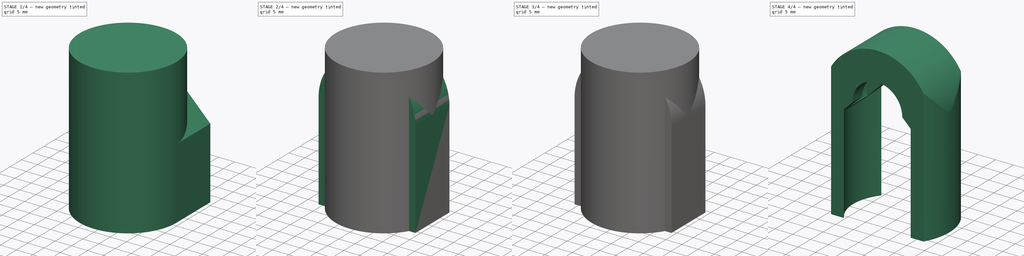
[diagram: build sequence overview — one tinted view per stage of 4, left to right]
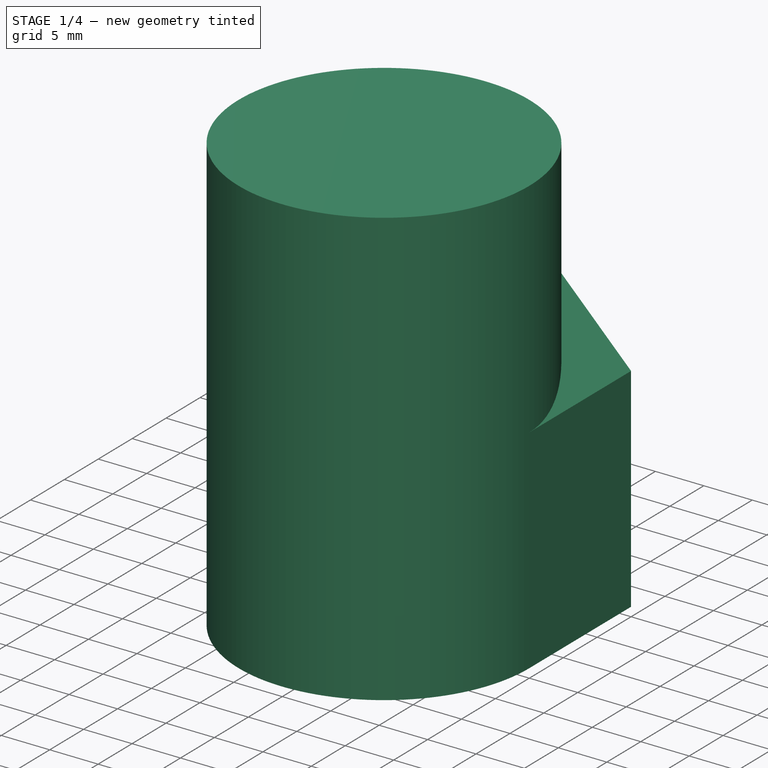
[diagram: stage 1 of 4 — iso view after this stage's code; geometry added in this stage tinted green]
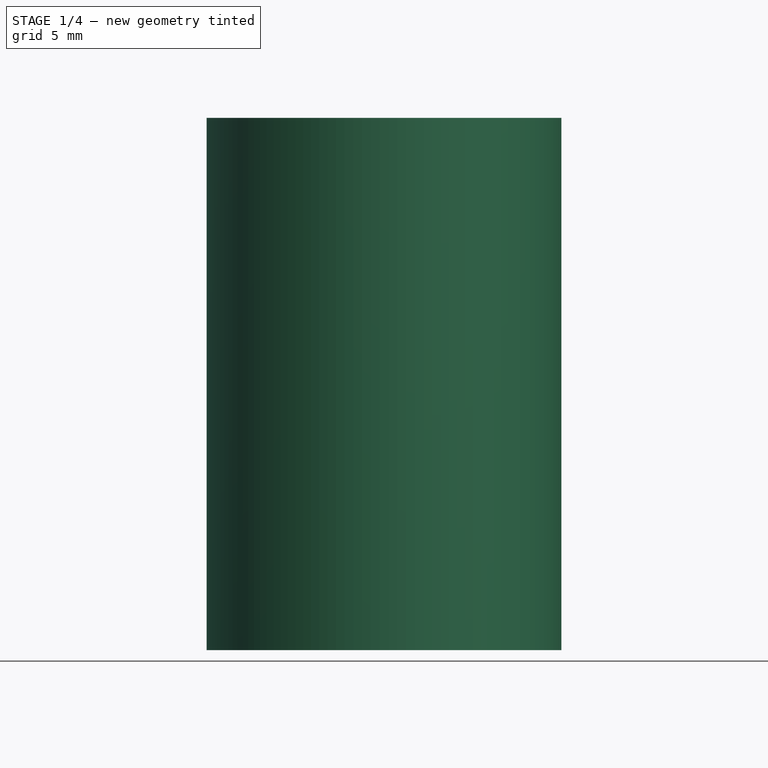
[diagram: stage 1 of 4 — front view after this stage's code; geometry added in this stage tinted green]
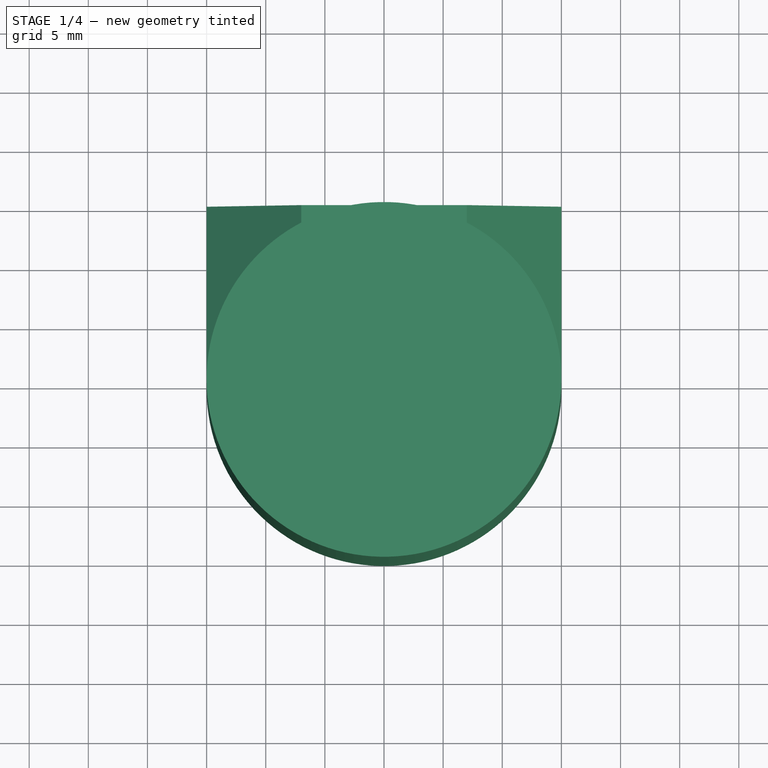
[diagram: stage 1 of 4 — top view after this stage's code; geometry added in this stage tinted green]
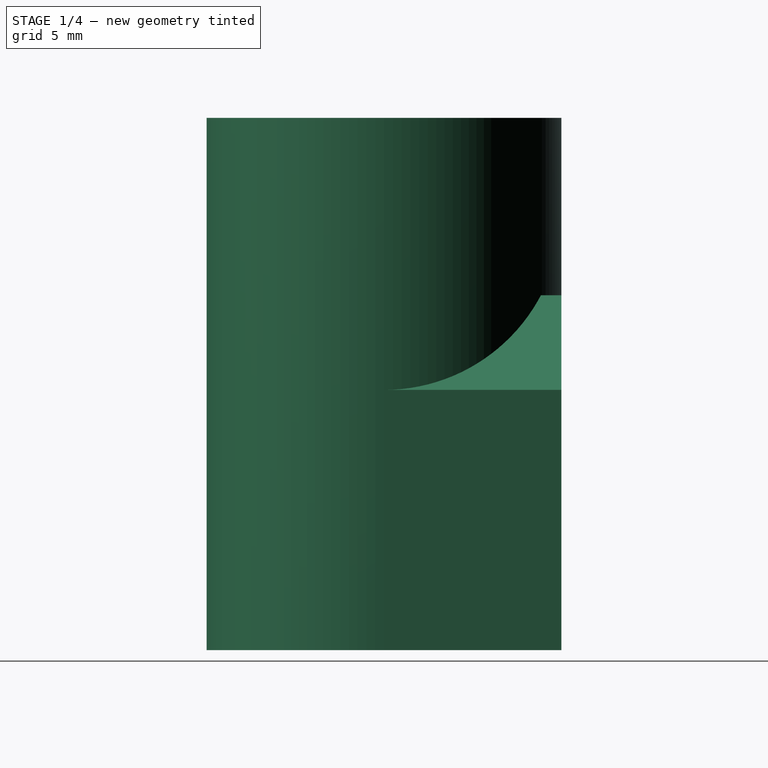
[diagram: stage 1 of 4 — right view after this stage's code; geometry added in this stage tinted green]
FCSTD DOCUMENT  (FreeCAD 0.17R13522 (Git))
Label: connector-bearing-top
License: All rights reserved
LicenseURL: http://en.wikipedia.org/wiki/All_rights_reserved
objects: Part::Cylinder×5, Part::MultiFuse×2, Part::MultiCommon×2, Part::Box×1, Sketcher::SketchObject×1, PartDesign::Pad×1, PartDesign::Body×1, Part::Cut×1
note: 15 computed .brp shape members not serialized (recipe doc carries the construction recipe); baked Part::Feature solids carry a one-line shape summary decoded from their .brp

FEATURE [Sketcher::SketchObject] Sketch
  MapMode = 5
  Placement = pos=(0,0,0) rot=(1,0,0;1.5708rad)
  Support = -> [XZ_Plane]
  sketch-geometry (6):
    g0: LineSegment StartX=-7 StartY=0 StartZ=0 EndX=7 EndY=0 EndZ=0
    g1: LineSegment StartX=7 StartY=0 StartZ=0 EndX=15 EndY=-8 EndZ=0
    g2: LineSegment StartX=-15 StartY=-8 StartZ=0 EndX=-7 EndY=0 EndZ=0
    g3: LineSegment StartX=15 StartY=-8 StartZ=0 EndX=15 EndY=-30 EndZ=0
    g4: LineSegment StartX=15 StartY=-30 StartZ=0 EndX=-15 EndY=-30 EndZ=0
    g5: LineSegment StartX=-15 StartY=-30 StartZ=0 EndX=-15 EndY=-8 EndZ=0
  constraints (18):
    c: Coincident(g0,g1)
    c: Coincident(g2,g0)
    c: Horizontal(g0)
    c: DistanceX(g-1,g0) = 7
    c: DistanceX(g0,g0) = 14
    c: DistanceY(g0,g-1) = 0
    c: Coincident(g3,g4)
    c: Coincident(g4,g5)
    c: Horizontal(g4)
    c: Vertical(g3)
    c: Vertical(g5)
    c: Coincident(g5,g2)
    c: Coincident(g3,g1)
    c: DistanceY(g3,g0) = 30
    c: Angle(g1,g3) = 2.35619
    c: Angle(g5,g2) = 2.35619
    c: DistanceX(g4,g4) = 30
    c: DistanceY(g2,g1) = 0
FEATURE [PartDesign::Pad] Pad
  Length = 15
  Length2 = 100
  Placement = pos=(0,0,0) rot=(1,0,0;1.5708rad)
  Profile = -> Sketch
  Reversed = true
  Type = 0
FEATURE [PartDesign::Body] Body
  Group = -> [Sketch,Pad]
  Origin = -> Origin
  Placement = pos=(0,-7.5,0) rot=(0,0,1;0rad)
  Tip = -> Pad
FEATURE [Part::Cylinder] Cylinder003  label="Cylinder002"
  Angle = 360
  AttacherType = Attacher::AttachEngine3D
  Height = 30
  Placement = pos=(0,0,-30) rot=(0,0,1;0rad)
  Radius = 12
FEATURE [Part::Cylinder] Cylinder004  label="Cylinder003"
  Angle = 360
  AttacherType = Attacher::AttachEngine3D
  Height = 45
  Placement = pos=(0,0,-30) rot=(0,0,1;0rad)
  Radius = 15
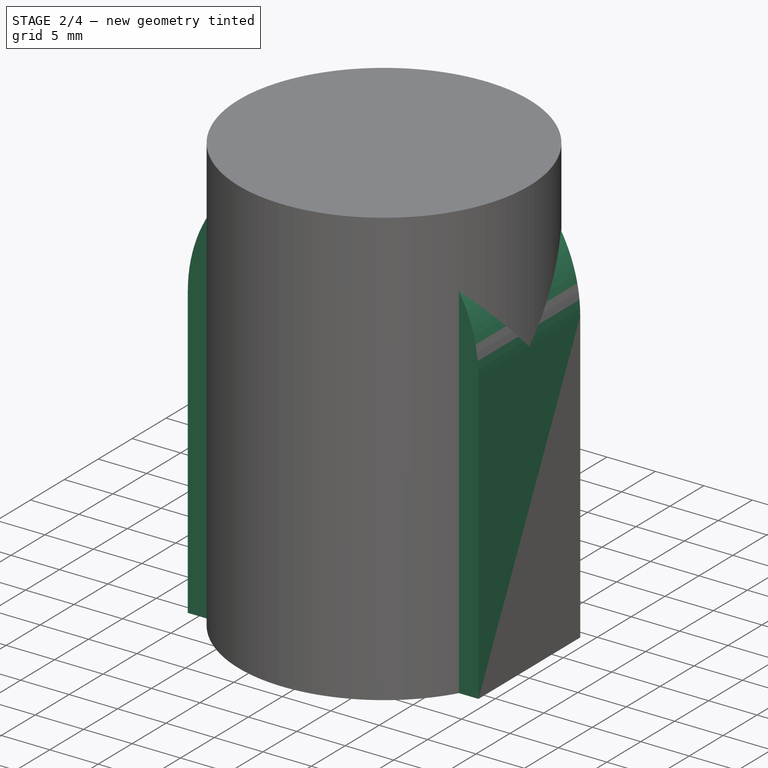
[diagram: stage 2 of 4 — iso view after this stage's code; geometry added in this stage tinted green]
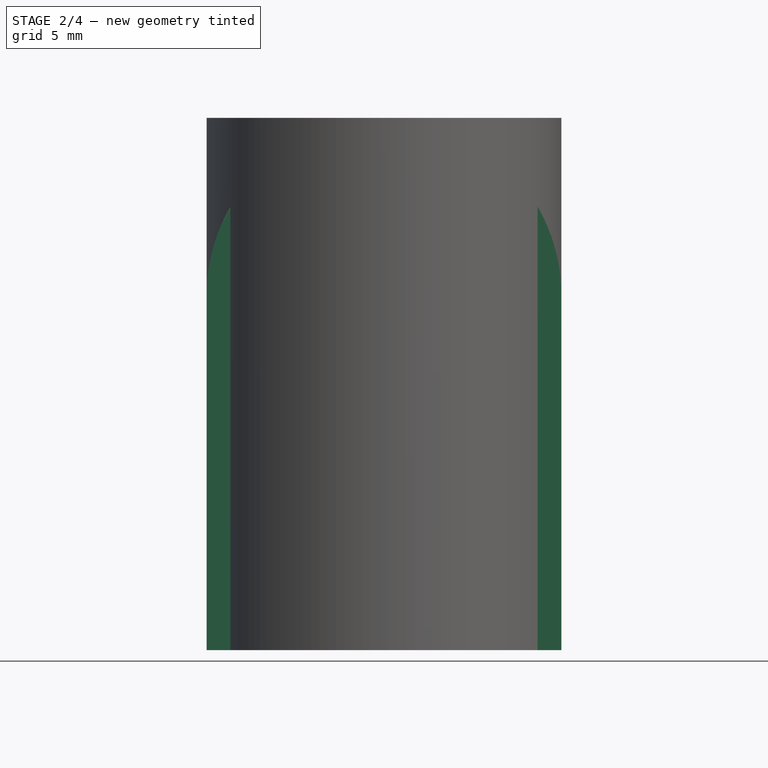
[diagram: stage 2 of 4 — front view after this stage's code; geometry added in this stage tinted green]
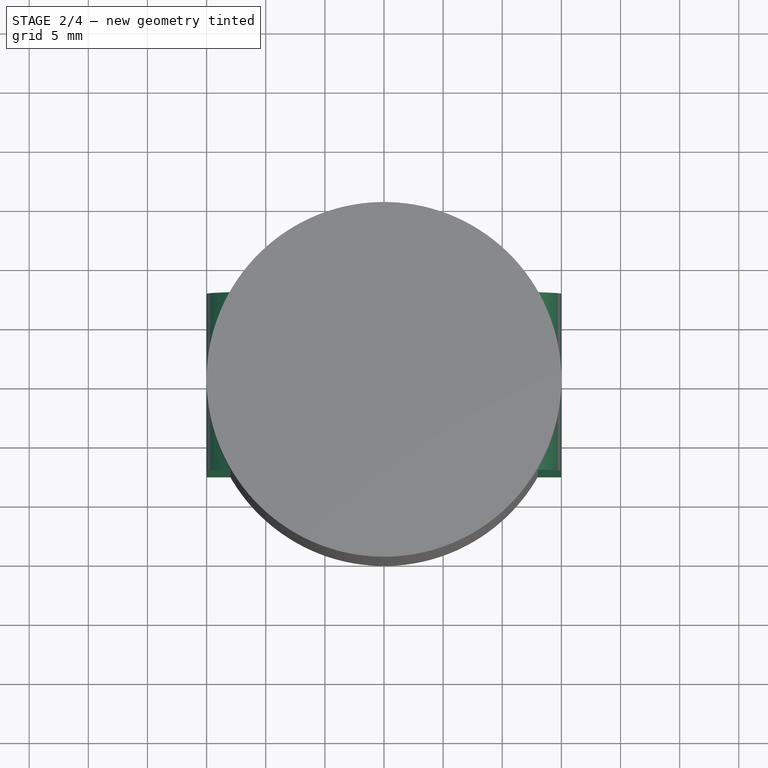
[diagram: stage 2 of 4 — top view after this stage's code; geometry added in this stage tinted green]
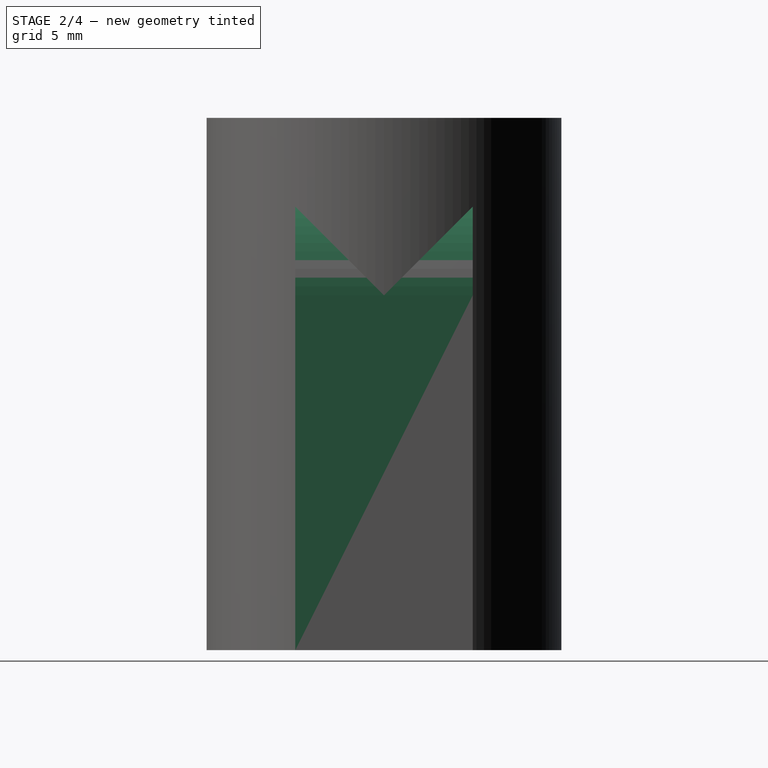
[diagram: stage 2 of 4 — right view after this stage's code; geometry added in this stage tinted green]
FEATURE [Part::Cylinder] Cylinder001  label="Cylinder"
  Angle = 360
  AttacherType = Attacher::AttachEngine3D
  Height = 15
  Placement = pos=(0,-7.5,0) rot=(-1,0,0;1.5708rad)
  Radius = 15
FEATURE [Part::Box] Box  label="Cube"
  AttacherType = Attacher::AttachEngine3D
  Height = 30
  Length = 30
  Placement = pos=(-15,-7.5,-30) rot=(0,0,1;0rad)
  Width = 15
FEATURE [Part::MultiCommon] Common
  Shapes = -> [Cylinder003,Body]
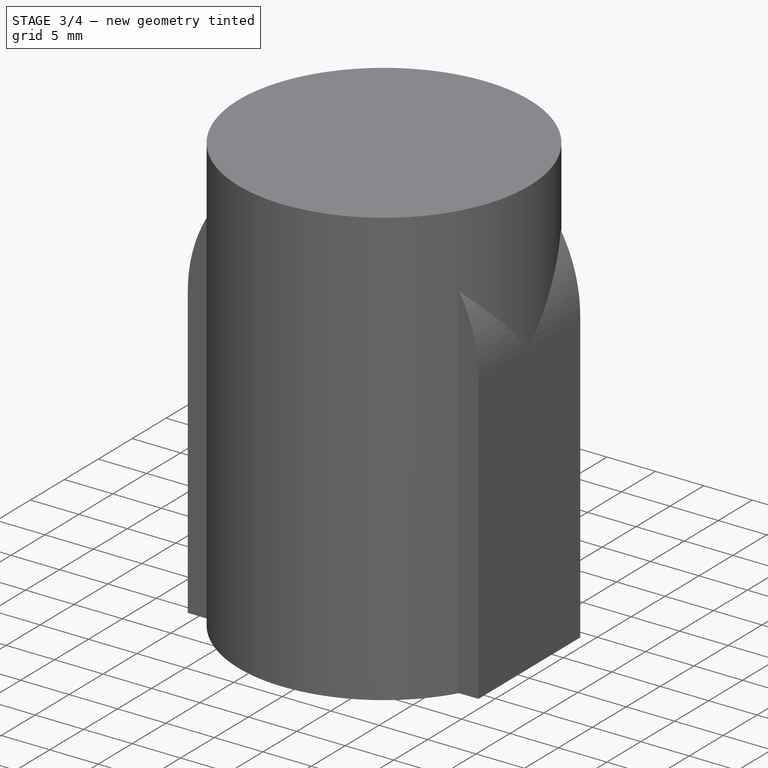
[diagram: stage 3 of 4 — iso view after this stage's code; geometry added in this stage tinted green]
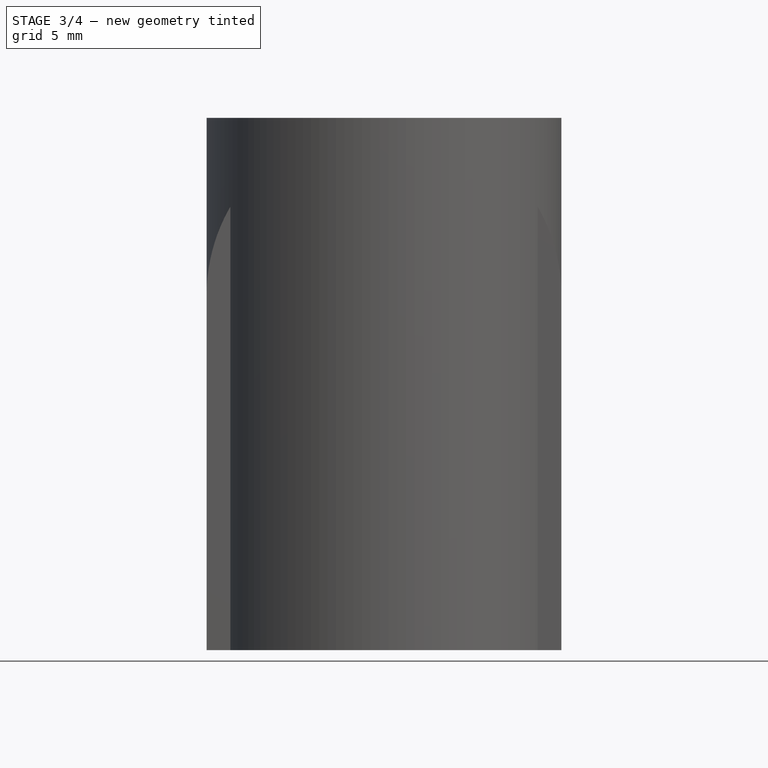
[diagram: stage 3 of 4 — front view after this stage's code; geometry added in this stage tinted green]
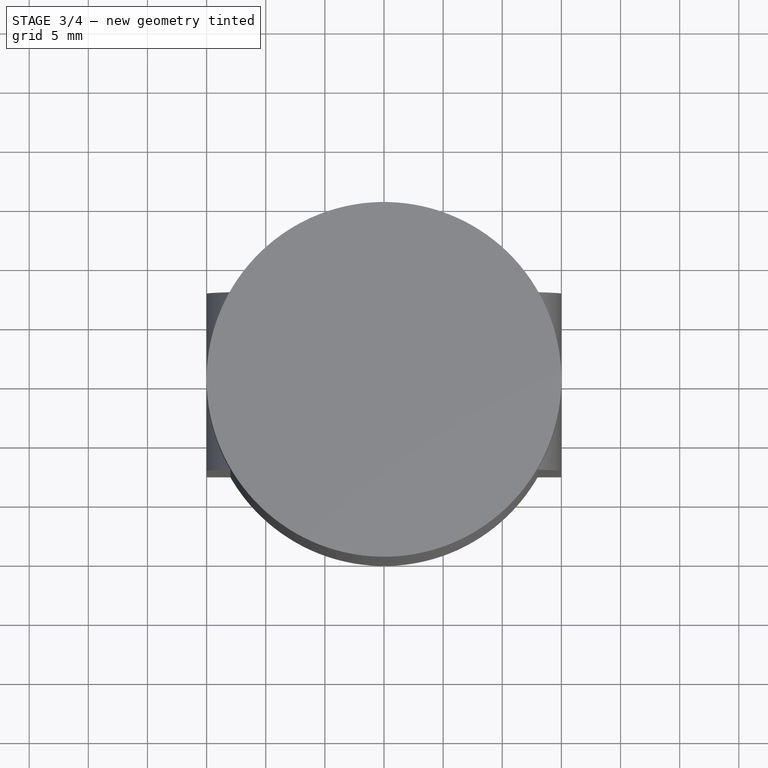
[diagram: stage 3 of 4 — top view after this stage's code; geometry added in this stage tinted green]
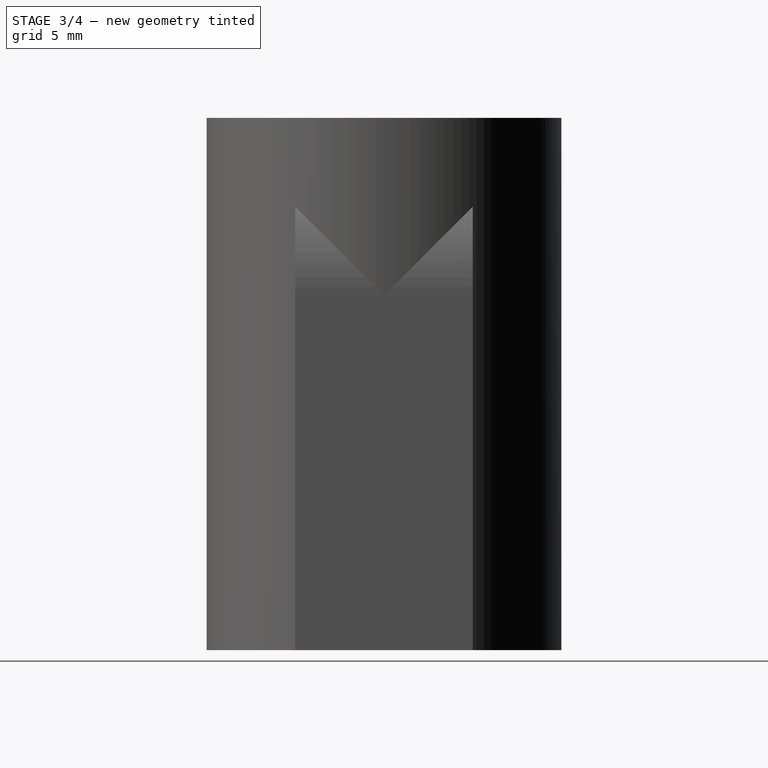
[diagram: stage 3 of 4 — right view after this stage's code; geometry added in this stage tinted green]
FEATURE [Part::Cylinder] Cylinder  label="Bearing"
  Angle = 360
  AttacherType = Attacher::AttachEngine3D
  Height = 7
  Placement = pos=(0,-3.5,0) rot=(0.57735,-0.57735,-0.57735;4.18879rad)
  Radius = 11
FEATURE [Part::Cylinder] Cylinder002  label="Cylinder001"
  Angle = 360
  AttacherType = Attacher::AttachEngine3D
  Height = 15
  Placement = pos=(0,-7.5,0) rot=(-1,0,0;1.5708rad)
  Radius = 7
FEATURE [Part::MultiFuse] Fusion001  label="Positive Fusion"
  Shapes = -> [Cylinder001,Box]
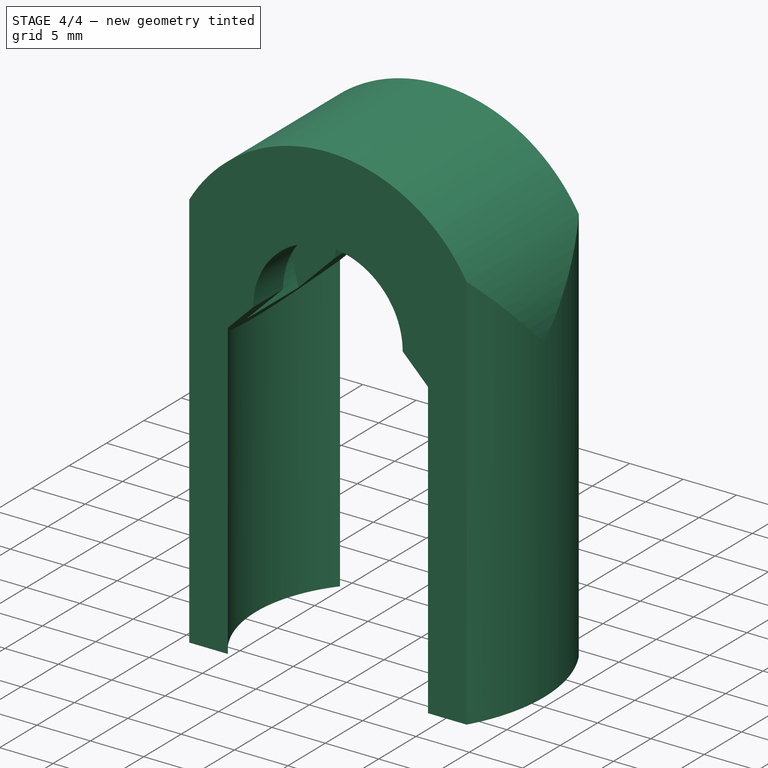
[diagram: stage 4 of 4 — iso view after this stage's code; geometry added in this stage tinted green]
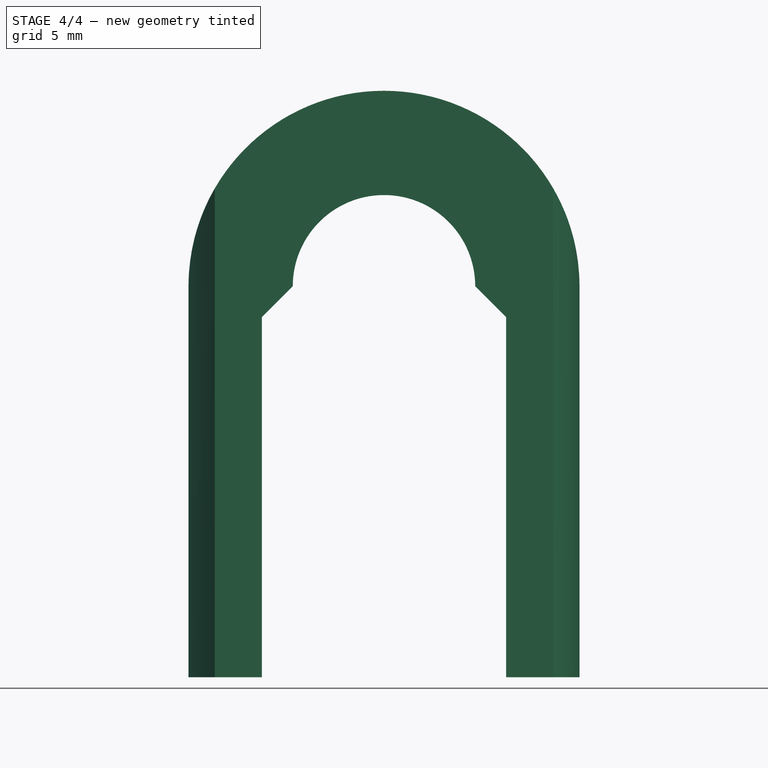
[diagram: stage 4 of 4 — front view after this stage's code; geometry added in this stage tinted green]
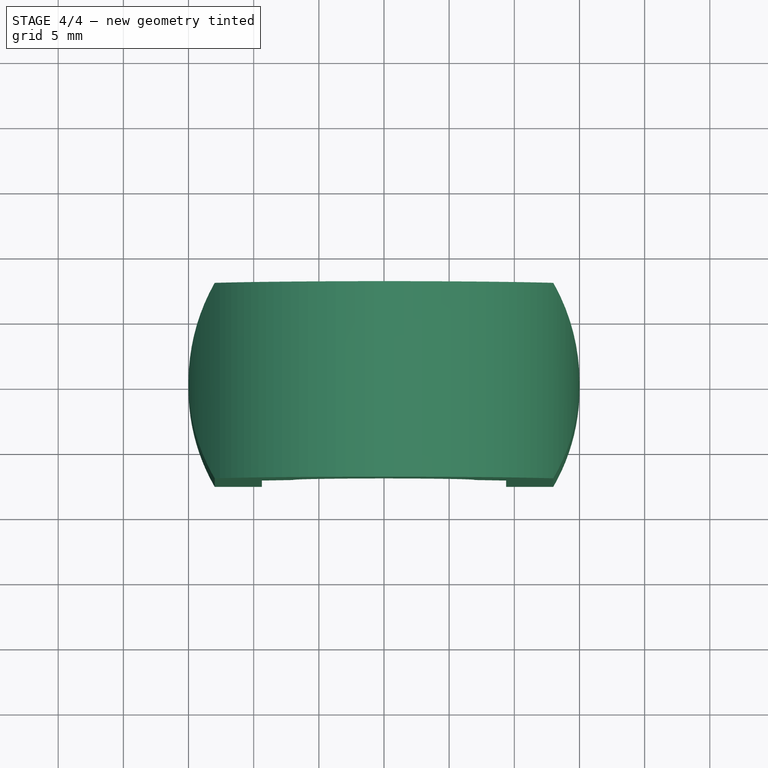
[diagram: stage 4 of 4 — top view after this stage's code; geometry added in this stage tinted green]
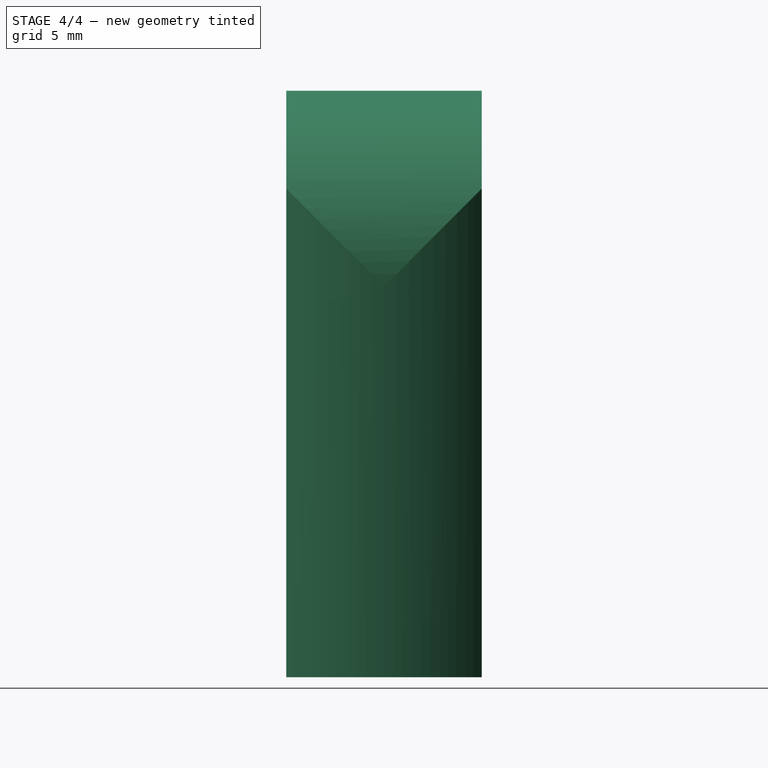
[diagram: stage 4 of 4 — right view after this stage's code; geometry added in this stage tinted green]
FEATURE [Part::MultiFuse] Fusion  label="Negative Fusion"
  Shapes = -> [Cylinder,Cylinder002,Common]
FEATURE [Part::Cut] Cut
  Base = -> Fusion001
  Tool = -> Fusion
FEATURE [Part::MultiCommon] Common001
  Shapes = -> [Cylinder004,Cut]
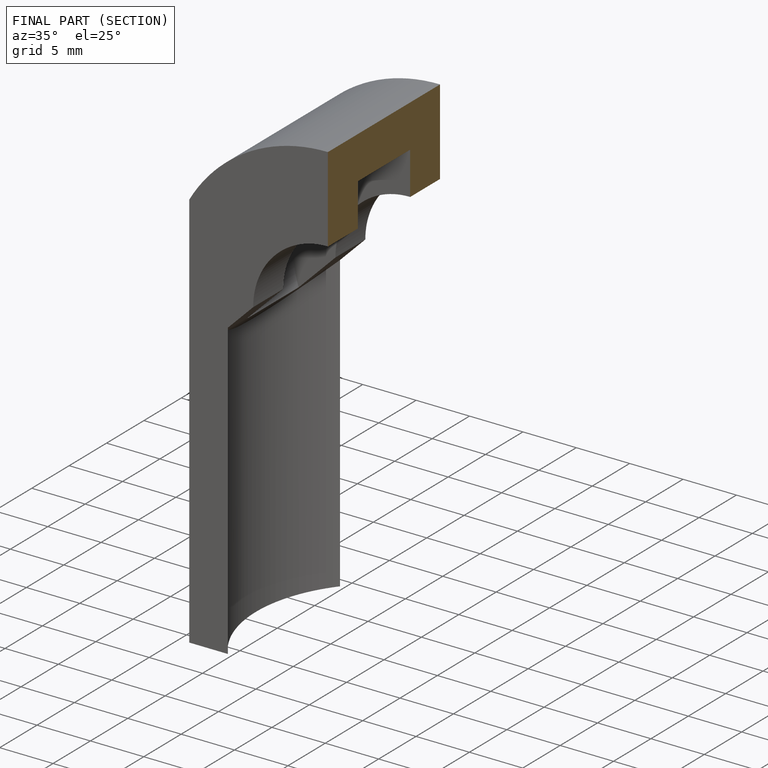
[diagram: finished part — half-section view (interior)]
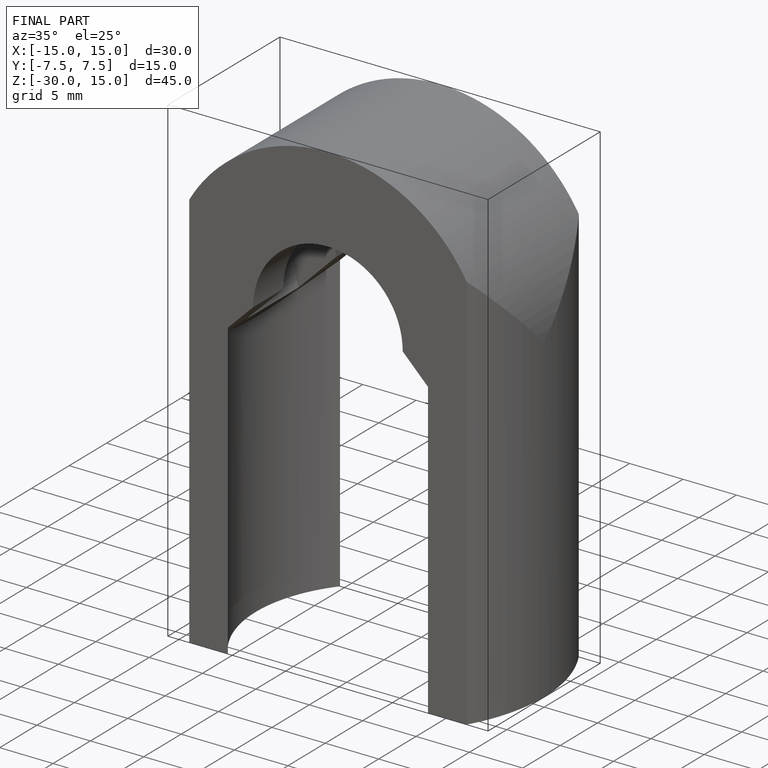
[diagram: finished part — iso view with bounding-box wireframe]
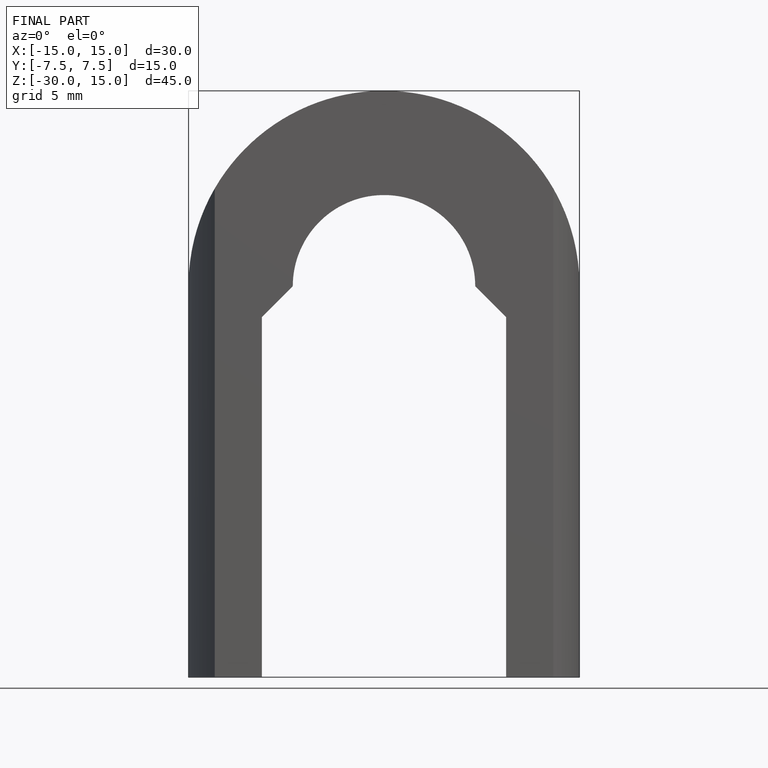
[diagram: finished part — front view with bounding-box wireframe]
